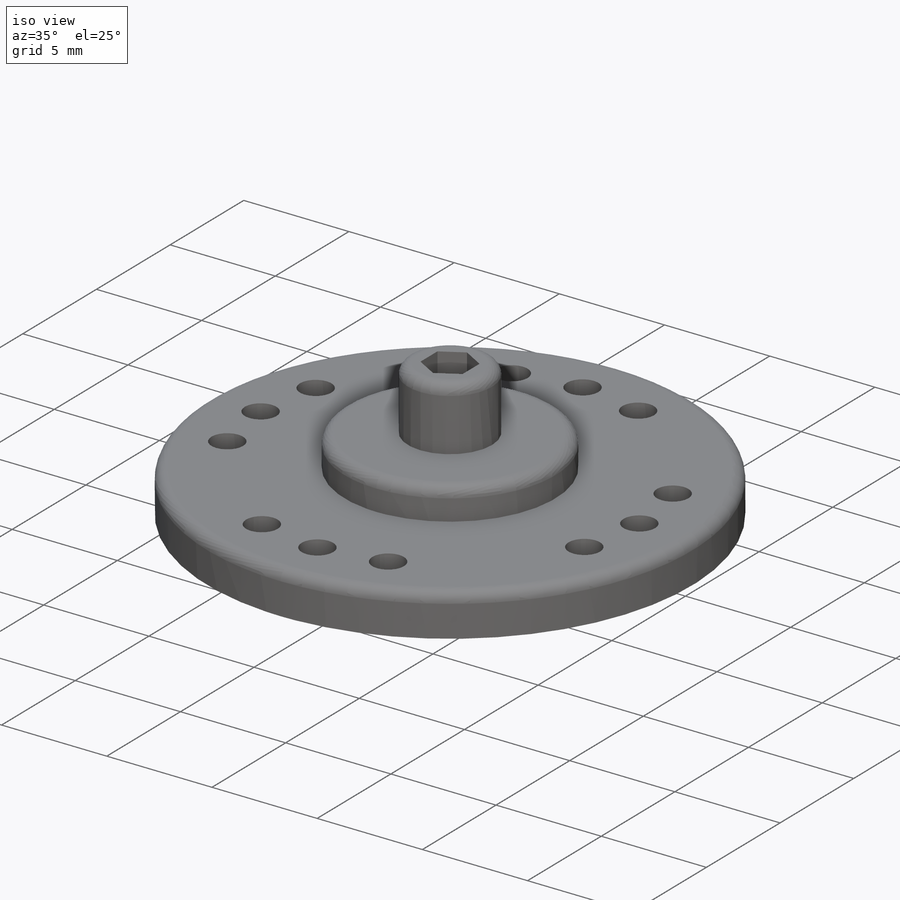
[diagram: iso view]
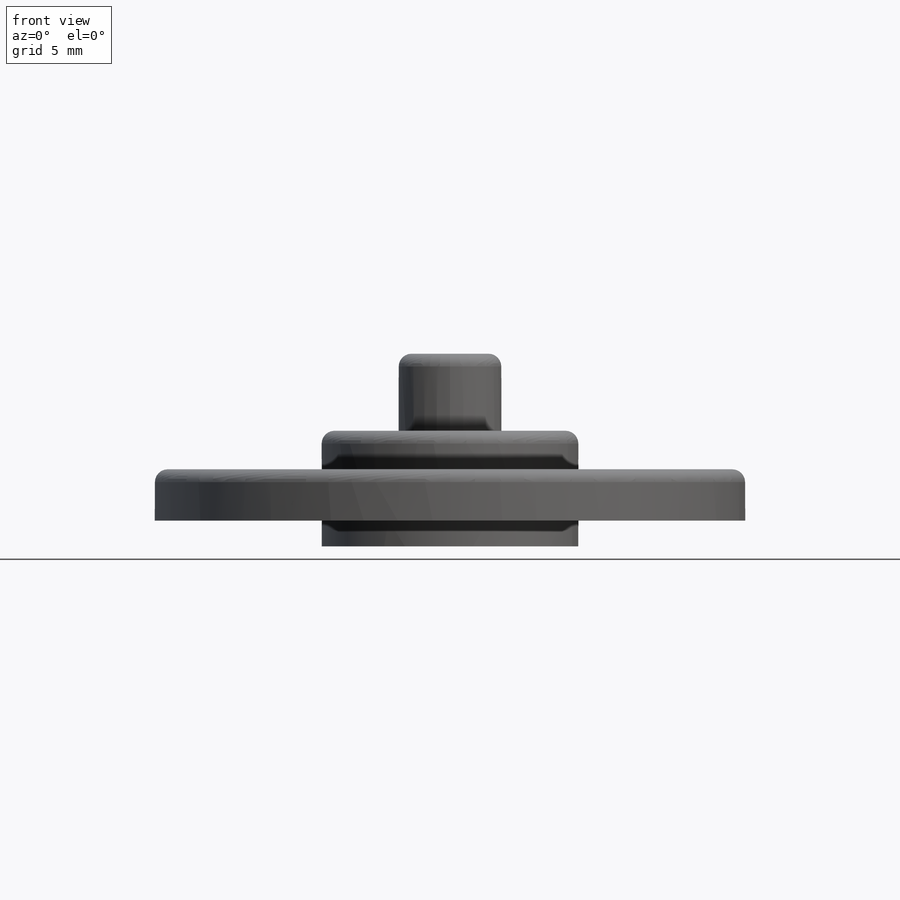
[diagram: front view]
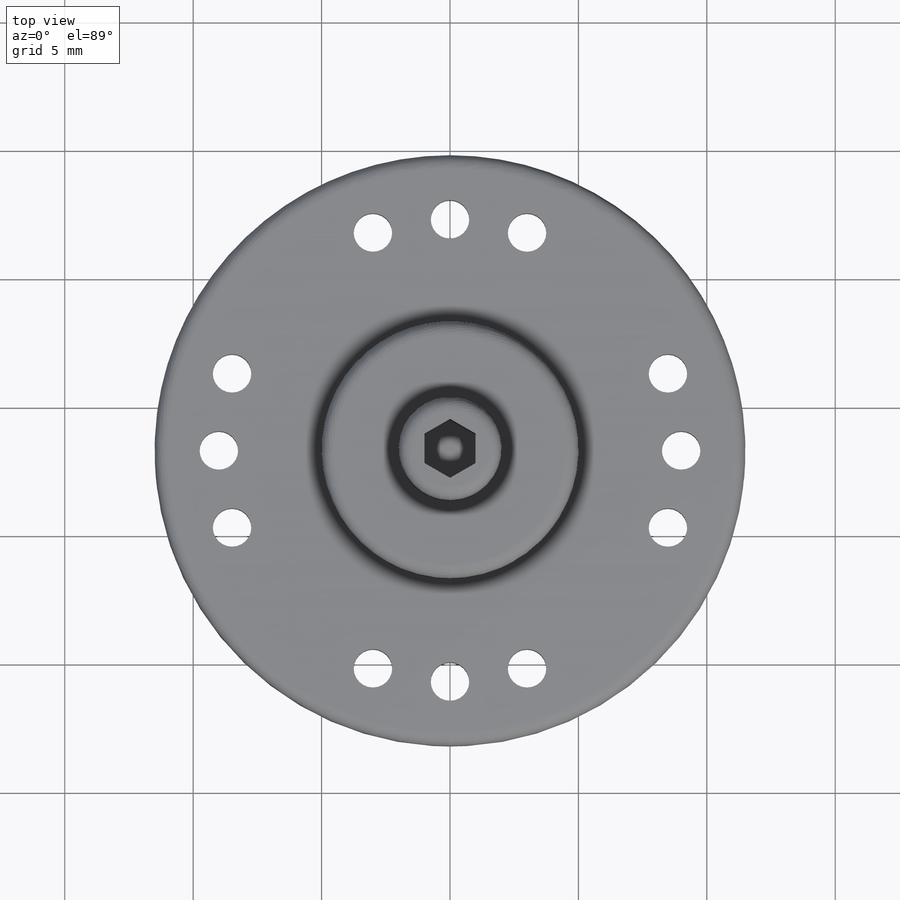
[diagram: top view]
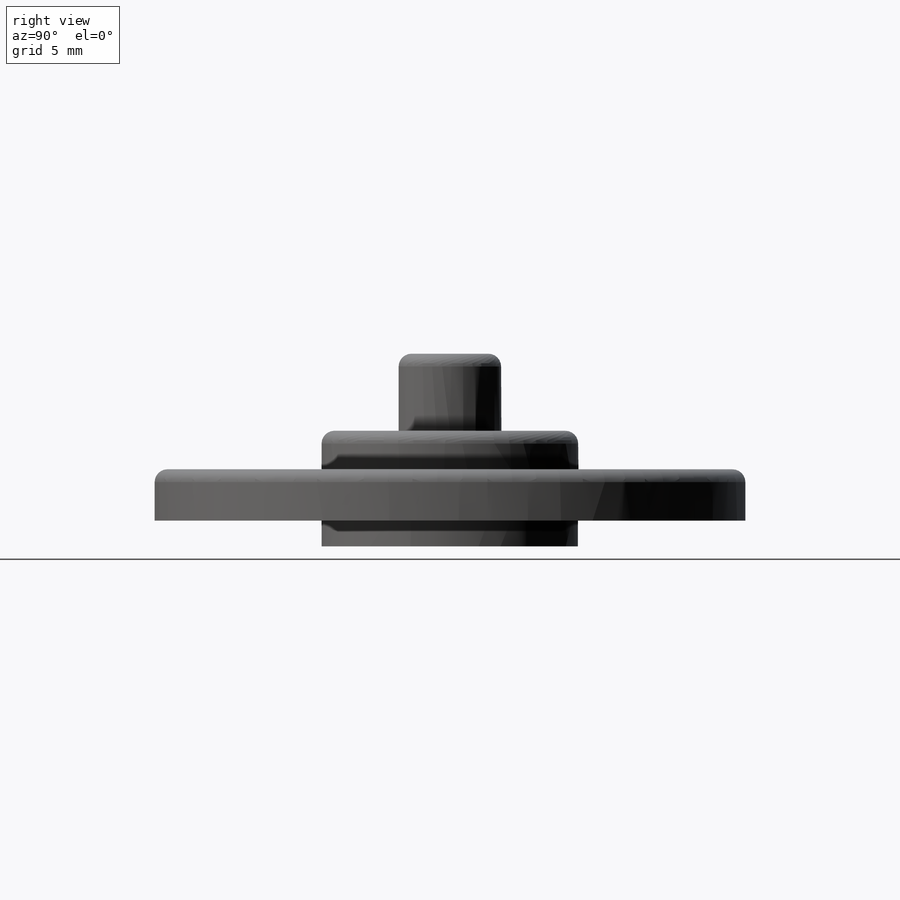
[diagram: right view]
SOLIDWORKS PART (.sldprt)
format: sldprt  version: not decoded by parser v0  size: 653,824 bytes
history: native  units: mm
features: sketch x5, extrude x4, plane x3, material x1, cut_extrude x1, pattern_circular x1, fillet x1 (+10 scaffold rows collapsed)
feature tree (26):
  scaffold x10  (default folders/planes/origin — collapsed)
  material  "Comercialmente puro CP-Ti UNS R50400 (SS)"
  plane  "Alzado"
  plane  "Planta"
  plane  "Vista lateral"
  sketch  "Croquis1"  dims[c1.D5=23.0mm c1.D7=~21.092411mm c1.D8=~17.369831mm c1.D9=~12.459831mm c1.D10=~2.960332mm c1.D11=18.0mm c1.D12=16.0mm c1.D13=10.0mm c1.D14=4.0mm c2.D7=1.5mm c2.D8=2.2mm c2.D17=2.0mm c2.D18=2.0mm c2.D21=2.3mm c2.D16=1.5mm c3.D8=2.0mm c3.D1=40.2mm c3.D2=65.1mm c3.D3=29.0mm c3.D4=59.5mm c3.D6=12.0mm c3.D7=3.0mm c4.D8=3.0mm c4.D9=3.0mm c4.D10=3.0mm c5.D9=12.5mm c5.D10=17.0mm c5.D15=22.0mm c5.D16=~33.871573mm c5.D17=~1.271993mm c5.D12=5.5mm c5.D3=35.6mm c5.D4=50.6mm c5.D19=45.0mm c5.D20=24.4mm c5.D21=34.6mm c6.D15=17.0mm c6.D22=~17.672054mm c6.D21=4.0mm c7.D22=2.0mm c7.D12=3.0mm c7.D23=4.0mm c7.D24=6.0mm c7.D25=4.5mm c7.D9=12.5mm]
  extrude  "Saliente-Extruir1"  Depth=2mm
  cut_extrude  "Cortar-Extruir2"  [1 undecoded]
  sketch  "Croquis1<9>"  dims[D1=3.0mm]
  pattern_circular  "MatrizC2"  Count=4 Angle=360deg
  extrude  "Saliente-Extruir2"  [1 undecoded]
  sketch  "Croquis1<11>"  dims[D1=1.5mm]
  extrude  "Saliente-Extruir3"  [1 undecoded]
  sketch  "Croquis1<12>"  dims[D1=3.0mm]
  fillet  "Redondeo1"  Radius=0.5mm
  extrude  "Saliente-Extruir4"  [1 undecoded]
  sketch  "Croquis1<13>"  dims[D1=1.0mm]
decode coverage: 8 of 12 modeling features carry decoded parameters
note: ~ marks probable driven/reference dimensions
note: 4 parameter values undecoded
summary: no parameter record found for 4 features
note: suppression state not decoded; provenance and decode notes live in map.json
